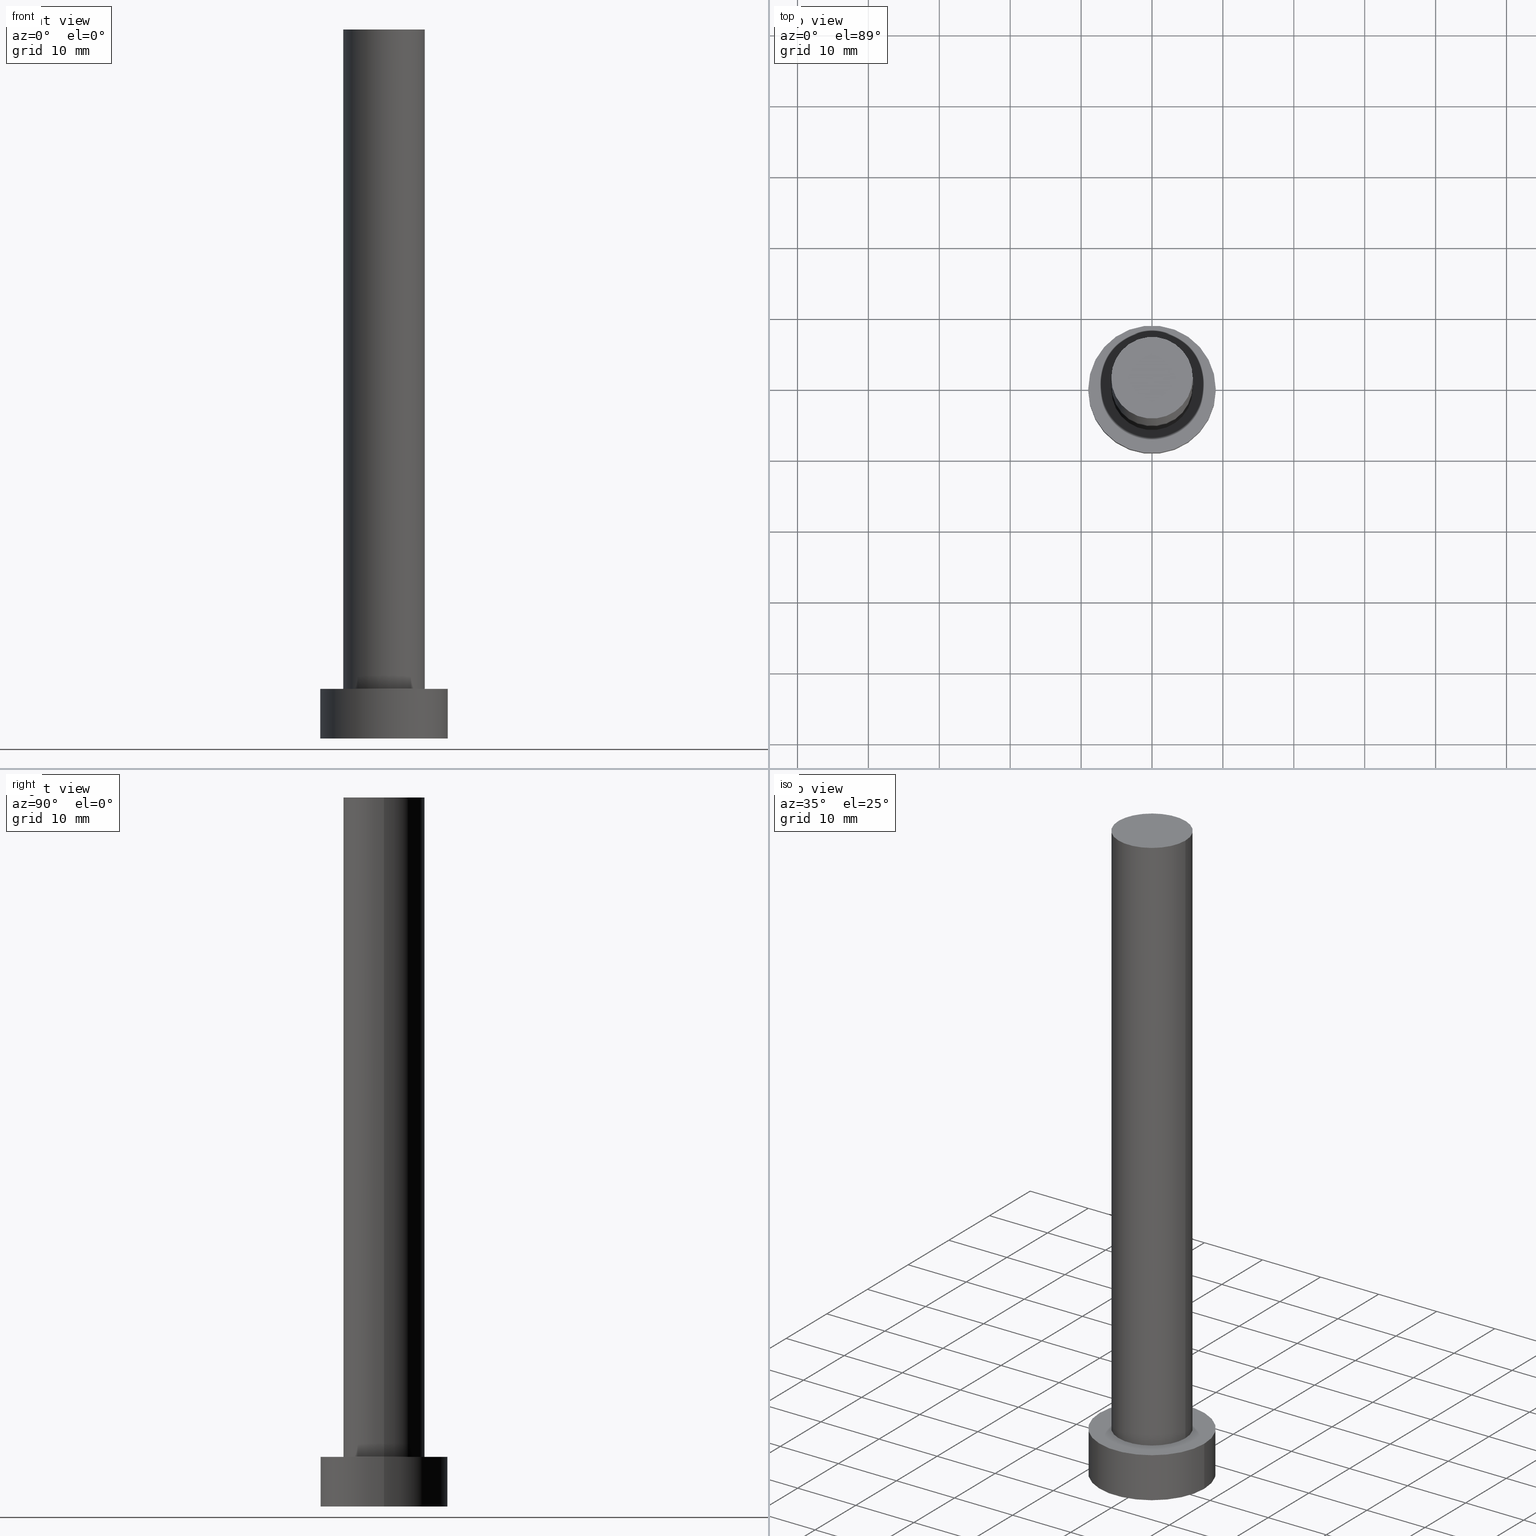
[diagram: canonical four-view strip — front | top / right | iso, engineering-drawing reading convention]
A machine part, canonical four-view strip (front | top / right | iso — engineering-drawing reading convention). The complete STEP part file that produces these views, byte-faithful:
ISO-10303-21;
HEADER;
FILE_DESCRIPTION (( 'STEP AP203' ),
    '1' );
FILE_NAME ('50ae.STEP',
    '2023-02-13T12:28:05',
    ( '' ),
    ( '' ),
    'SwSTEP 2.0',
    'SolidWorks 2019',
    '' );
FILE_SCHEMA (( 'CONFIG_CONTROL_DESIGN' ));
ENDSEC;

DATA;
#1 = PERSON_AND_ORGANIZATION ( #154, #238 ) ;
#2 = ADVANCED_FACE ( 'NONE', ( #80 ), #162, .T. ) ;
#3 = CALENDAR_DATE ( 2023, 13, 2 ) ;
#4 = CC_DESIGN_PERSON_AND_ORGANIZATION_ASSIGNMENT ( #223, #234, ( #130 ) ) ;
#5 = AXIS2_PLACEMENT_3D ( 'NONE', #243, #151, #91 ) ;
#6 = APPROVAL_ROLE ( '' ) ;
#7 = EDGE_LOOP ( 'NONE', ( #217, #252, #173, #56 ) ) ;
#8 = CARTESIAN_POINT ( 'NONE',  ( 9.000000000000000000, 1.102182119232617714E-15, 7.000000000000000000 ) ) ;
#9 = ORIENTED_EDGE ( 'NONE', *, *, #68, .F. ) ;
#10 = CARTESIAN_POINT ( 'NONE',  ( -9.000000000000000000, 0.000000000000000000, 7.000000000000000000 ) ) ;
#11 = DIRECTION ( 'NONE',  ( -0.000000000000000000, -0.000000000000000000, -1.000000000000000000 ) ) ;
#12 = CARTESIAN_POINT ( 'NONE',  ( 0.000000000000000000, 0.000000000000000000, 7.000000000000000000 ) ) ;
#13 = APPROVAL ( #95, 'NEUR�EN�' ) ;
#14 = APPLICATION_CONTEXT ( 'configuration controlled 3d designs of mechanical parts and assemblies' ) ;
#15 = VECTOR ( 'NONE', #225, 1000.000000000000000 ) ;
#16 = DIRECTION ( 'NONE',  ( 1.000000000000000000, 0.000000000000000000, 0.000000000000000000 ) ) ;
#17 = CARTESIAN_POINT ( 'NONE',  ( 0.000000000000000000, 0.000000000000000000, 7.000000000000000000 ) ) ;
#18 = SHAPE_DEFINITION_REPRESENTATION ( #206, #218 ) ;
#19 = MANIFOLD_SOLID_BREP ( 'P�idat vysunut�m3', #101 ) ;
#20 = VECTOR ( 'NONE', #51, 1000.000000000000000 ) ;
#21 = DIRECTION ( 'NONE',  ( 0.000000000000000000, 0.000000000000000000, 1.000000000000000000 ) ) ;
#22 = DIRECTION ( 'NONE',  ( -1.000000000000000000, 0.000000000000000000, 0.000000000000000000 ) ) ;
#23 = EDGE_LOOP ( 'NONE', ( #100, #192 ) ) ;
#24 = UNCERTAINTY_MEASURE_WITH_UNIT (LENGTH_MEASURE( 1.000000000000000082E-05 ), #79, 'distance_accuracy_value', 'NONE');
#25 = CC_DESIGN_SECURITY_CLASSIFICATION ( #155, ( #130 ) ) ;
#26 = LOCAL_TIME ( 13, 28, 5.000000000000000000, #102 ) ;
#27 = EDGE_CURVE ( 'NONE', #112, #81, #103, .T. ) ;
#28 = CARTESIAN_POINT ( 'NONE',  ( 0.000000000000000000, 0.000000000000000000, 7.000000000000000000 ) ) ;
#29 = ORIENTED_EDGE ( 'NONE', *, *, #210, .F. ) ;
#30 = DESIGN_CONTEXT ( 'detailed design', #14, 'design' ) ;
#31 = EDGE_CURVE ( 'NONE', #249, #190, #247, .T. ) ;
#32 = DIRECTION ( 'NONE',  ( 1.000000000000000000, 0.000000000000000000, 0.000000000000000000 ) ) ;
#33 = FACE_BOUND ( 'NONE', #159, .T. ) ;
#34 = DIRECTION ( 'NONE',  ( 0.000000000000000000, 0.000000000000000000, 1.000000000000000000 ) ) ;
#35 = CALENDAR_DATE ( 2023, 13, 2 ) ;
#36 = CARTESIAN_POINT ( 'NONE',  ( -5.750000000000000000, 0.000000000000000000, 7.000000000000000000 ) ) ;
#37 = LINE ( 'NONE', #147, #149 ) ;
#38 = CARTESIAN_POINT ( 'NONE',  ( -5.750000000000000000, 0.000000000000000000, 100.0000000000000000 ) ) ;
#39 = EDGE_CURVE ( 'NONE', #81, #83, #195, .T. ) ;
#40 = ORIENTED_EDGE ( 'NONE', *, *, #178, .F. ) ;
#41 = CALENDAR_DATE ( 2023, 13, 2 ) ;
#42 = CC_DESIGN_PERSON_AND_ORGANIZATION_ASSIGNMENT ( #109, #110, ( #241 ) ) ;
#43 = PERSON_AND_ORGANIZATION_ROLE ( 'creator' ) ;
#44 = AXIS2_PLACEMENT_3D ( 'NONE', #158, #191, #203 ) ;
#45 = AXIS2_PLACEMENT_3D ( 'NONE', #108, #236, #145 ) ;
#46 = CYLINDRICAL_SURFACE ( 'NONE', #71, 9.000000000000000000 ) ;
#47 = CC_DESIGN_PERSON_AND_ORGANIZATION_ASSIGNMENT ( #164, #67, ( #130 ) ) ;
#48 = FACE_OUTER_BOUND ( 'NONE', #23, .T. ) ;
#49 = FACE_OUTER_BOUND ( 'NONE', #85, .T. ) ;
#50 = VECTOR ( 'NONE', #208, 1000.000000000000000 ) ;
#51 = DIRECTION ( 'NONE',  ( -0.000000000000000000, -0.000000000000000000, -1.000000000000000000 ) ) ;
#52 = CARTESIAN_POINT ( 'NONE',  ( 5.750000000000000000, 7.041719095097279894E-16, 7.000000000000000000 ) ) ;
#53 = DIRECTION ( 'NONE',  ( -1.000000000000000000, 0.000000000000000000, 0.000000000000000000 ) ) ;
#54 = CARTESIAN_POINT ( 'NONE',  ( 0.000000000000000000, 0.000000000000000000, 0.000000000000000000 ) ) ;
#55 = LINE ( 'NONE', #150, #15 ) ;
#56 = ORIENTED_EDGE ( 'NONE', *, *, #127, .F. ) ;
#57 = CARTESIAN_POINT ( 'NONE',  ( 0.000000000000000000, 0.000000000000000000, 100.0000000000000000 ) ) ;
#58 = DIRECTION ( 'NONE',  ( 1.000000000000000000, 0.000000000000000000, 0.000000000000000000 ) ) ;
#59 = AXIS2_PLACEMENT_3D ( 'NONE', #156, #93, #16 ) ;
#60 =( NAMED_UNIT ( * ) SI_UNIT ( $, .STERADIAN. ) SOLID_ANGLE_UNIT ( ) );
#61 = ORIENTED_EDGE ( 'NONE', *, *, #84, .F. ) ;
#62 = EDGE_LOOP ( 'NONE', ( #40, #125, #181, #72 ) ) ;
#63 = APPROVAL_PERSON_ORGANIZATION ( #205, #13, #212 ) ;
#64 = PERSON_AND_ORGANIZATION_ROLE ( 'classification_officer' ) ;
#65 = CC_DESIGN_PERSON_AND_ORGANIZATION_ASSIGNMENT ( #86, #43, ( #97 ) ) ;
#66 = CARTESIAN_POINT ( 'NONE',  ( 9.000000000000000000, 1.102182119232617714E-15, 0.000000000000000000 ) ) ;
#67 = PERSON_AND_ORGANIZATION_ROLE ( 'creator' ) ;
#68 = EDGE_CURVE ( 'NONE', #183, #190, #88, .T. ) ;
#69 = LOCAL_TIME ( 13, 28, 5.000000000000000000, #220 ) ;
#70 = FACE_OUTER_BOUND ( 'NONE', #7, .T. ) ;
#71 = AXIS2_PLACEMENT_3D ( 'NONE', #244, #11, #139 ) ;
#72 = ORIENTED_EDGE ( 'NONE', *, *, #120, .T. ) ;
#73 = CARTESIAN_POINT ( 'NONE',  ( 0.000000000000000000, 0.000000000000000000, 100.0000000000000000 ) ) ;
#74 = CARTESIAN_POINT ( 'NONE',  ( 0.000000000000000000, 0.000000000000000000, 7.000000000000000000 ) ) ;
#75 = DIRECTION ( 'NONE',  ( 1.000000000000000000, 0.000000000000000000, 0.000000000000000000 ) ) ;
#76 = APPLICATION_PROTOCOL_DEFINITION ( 'international standard', 'config_control_design', 1994, #104 ) ;
#77 = ORIENTED_EDGE ( 'NONE', *, *, #178, .T. ) ;
#78 = DIRECTION ( 'NONE',  ( 0.000000000000000000, 0.000000000000000000, 1.000000000000000000 ) ) ;
#79 =( LENGTH_UNIT ( ) NAMED_UNIT ( * ) SI_UNIT ( .MILLI., .METRE. ) );
#80 = FACE_OUTER_BOUND ( 'NONE', #94, .T. ) ;
#81 = VERTEX_POINT ( 'NONE', #66 ) ;
#82 = ORIENTED_EDGE ( 'NONE', *, *, #210, .T. ) ;
#83 = VERTEX_POINT ( 'NONE', #228 ) ;
#84 = EDGE_CURVE ( 'NONE', #216, #249, #123, .T. ) ;
#85 = EDGE_LOOP ( 'NONE', ( #29, #222 ) ) ;
#86 = PERSON_AND_ORGANIZATION ( #154, #238 ) ;
#87 = DATE_AND_TIME ( #255, #148 ) ;
#88 = CIRCLE ( 'NONE', #233, 5.750000000000000000 ) ;
#89 = CALENDAR_DATE ( 2023, 13, 2 ) ;
#90 = COORDINATED_UNIVERSAL_TIME_OFFSET ( 1, 0, .AHEAD. ) ;
#91 = DIRECTION ( 'NONE',  ( 1.000000000000000000, 0.000000000000000000, 0.000000000000000000 ) ) ;
#92 = CARTESIAN_POINT ( 'NONE',  ( 0.000000000000000000, 0.000000000000000000, 7.000000000000000000 ) ) ;
#93 = DIRECTION ( 'NONE',  ( 0.000000000000000000, 0.000000000000000000, 1.000000000000000000 ) ) ;
#94 = EDGE_LOOP ( 'NONE', ( #61, #77, #174, #202 ) ) ;
#95 = APPROVAL_STATUS ( 'not_yet_approved' ) ;
#96 = DIRECTION ( 'NONE',  ( -1.000000000000000000, 0.000000000000000000, 0.000000000000000000 ) ) ;
#97 = PRODUCT_DEFINITION ( 'NEZN�M�', '', #130, #30 ) ;
#98 = DATE_AND_TIME ( #35, #26 ) ;
#99 = ORIENTED_EDGE ( 'NONE', *, *, #120, .F. ) ;
#100 = ORIENTED_EDGE ( 'NONE', *, *, #152, .T. ) ;
#101 = CLOSED_SHELL ( 'NONE', ( #2, #133, #161, #188, #186, #219, #242 ) ) ;
#102 = COORDINATED_UNIVERSAL_TIME_OFFSET ( 1, 0, .AHEAD. ) ;
#103 = LINE ( 'NONE', #232, #20 ) ;
#104 = APPLICATION_CONTEXT ( 'configuration controlled 3d designs of mechanical parts and assemblies' ) ;
#105 = ORIENTED_EDGE ( 'NONE', *, *, #117, .T. ) ;
#106 = AXIS2_PLACEMENT_3D ( 'NONE', #207, #119, #214 ) ;
#107 = APPLICATION_PROTOCOL_DEFINITION ( 'international standard', 'config_control_design', 1994, #14 ) ;
#108 = CARTESIAN_POINT ( 'NONE',  ( 0.000000000000000000, 0.000000000000000000, 7.000000000000000000 ) ) ;
#109 = PERSON_AND_ORGANIZATION ( #154, #238 ) ;
#110 = PERSON_AND_ORGANIZATION_ROLE ( 'design_owner' ) ;
#111 = APPROVAL ( #180, 'NEUR�EN�' ) ;
#112 = VERTEX_POINT ( 'NONE', #8 ) ;
#113 = DATE_TIME_ROLE ( 'classification_date' ) ;
#114 = CC_DESIGN_APPROVAL ( #254, ( #130 ) ) ;
#115 = CIRCLE ( 'NONE', #59, 5.750000000000000000 ) ;
#116 = DIRECTION ( 'NONE',  ( 1.000000000000000000, 0.000000000000000000, -0.000000000000000000 ) ) ;
#117 = EDGE_CURVE ( 'NONE', #251, #112, #157, .T. ) ;
#118 = DIRECTION ( 'NONE',  ( 0.000000000000000000, 0.000000000000000000, 1.000000000000000000 ) ) ;
#119 = DIRECTION ( 'NONE',  ( 0.000000000000000000, 0.000000000000000000, 1.000000000000000000 ) ) ;
#120 = EDGE_CURVE ( 'NONE', #190, #183, #189, .T. ) ;
#121 = PLANE ( 'NONE',  #166 ) ;
#122 = DIRECTION ( 'NONE',  ( 1.000000000000000000, 0.000000000000000000, 0.000000000000000000 ) ) ;
#123 = CIRCLE ( 'NONE', #5, 5.750000000000000000 ) ;
#124 = DIRECTION ( 'NONE',  ( -0.000000000000000000, -0.000000000000000000, -1.000000000000000000 ) ) ;
#125 = ORIENTED_EDGE ( 'NONE', *, *, #152, .F. ) ;
#126 = ORIENTED_EDGE ( 'NONE', *, *, #117, .F. ) ;
#127 = EDGE_CURVE ( 'NONE', #251, #83, #37, .T. ) ;
#128 = ORIENTED_EDGE ( 'NONE', *, *, #127, .T. ) ;
#129 = DATE_AND_TIME ( #41, #69 ) ;
#130 = PRODUCT_DEFINITION_FORMATION_WITH_SPECIFIED_SOURCE ( 'LIBOVOLN�', '', #241, .NOT_KNOWN. ) ;
#131 = AXIS2_PLACEMENT_3D ( 'NONE', #92, #168, #96 ) ;
#132 = APPROVAL_STATUS ( 'not_yet_approved' ) ;
#133 = ADVANCED_FACE ( 'NONE', ( #70 ), #46, .T. ) ;
#134 = DIRECTION ( 'NONE',  ( 1.000000000000000000, 0.000000000000000000, -0.000000000000000000 ) ) ;
#135 = DIRECTION ( 'NONE',  ( 0.000000000000000000, 0.000000000000000000, 1.000000000000000000 ) ) ;
#136 = AXIS2_PLACEMENT_3D ( 'NONE', #193, #21, #58 ) ;
#137 = PLANE ( 'NONE',  #106 ) ;
#138 = PLANE ( 'NONE',  #160 ) ;
#139 = DIRECTION ( 'NONE',  ( -1.000000000000000000, 0.000000000000000000, 0.000000000000000000 ) ) ;
#140 = APPROVAL_PERSON_ORGANIZATION ( #144, #254, #176 ) ;
#141 = CC_DESIGN_APPROVAL ( #13, ( #155 ) ) ;
#142 = SECURITY_CLASSIFICATION_LEVEL ( 'unclassified' ) ;
#143 = EDGE_CURVE ( 'NONE', #112, #251, #175, .T. ) ;
#144 = PERSON_AND_ORGANIZATION ( #154, #238 ) ;
#145 = DIRECTION ( 'NONE',  ( 1.000000000000000000, 0.000000000000000000, 0.000000000000000000 ) ) ;
#146 = DATE_TIME_ROLE ( 'creation_date' ) ;
#147 = CARTESIAN_POINT ( 'NONE',  ( -9.000000000000000000, 0.000000000000000000, 7.000000000000000000 ) ) ;
#148 = LOCAL_TIME ( 13, 28, 5.000000000000000000, #90 ) ;
#149 = VECTOR ( 'NONE', #237, 1000.000000000000000 ) ;
#150 = CARTESIAN_POINT ( 'NONE',  ( 5.750000000000000000, 7.041719095097279894E-16, 100.0000000000000000 ) ) ;
#151 = DIRECTION ( 'NONE',  ( 0.000000000000000000, 0.000000000000000000, 1.000000000000000000 ) ) ;
#152 = EDGE_CURVE ( 'NONE', #249, #216, #115, .T. ) ;
#153 = CYLINDRICAL_SURFACE ( 'NONE', #131, 9.000000000000000000 ) ;
#154 = PERSON ( 'NEUR�EN�', 'NEUR�EN�', 'NEUR�EN�', ('NEUR�EN�'), ('NEUR�EN�'), ('NEUR�EN�') ) ;
#155 = SECURITY_CLASSIFICATION ( '', '', #142 ) ;
#156 = CARTESIAN_POINT ( 'NONE',  ( 0.000000000000000000, 0.000000000000000000, 100.0000000000000000 ) ) ;
#157 = CIRCLE ( 'NONE', #45, 9.000000000000000000 ) ;
#158 = CARTESIAN_POINT ( 'NONE',  ( 0.000000000000000000, 0.000000000000000000, 0.000000000000000000 ) ) ;
#159 = EDGE_LOOP ( 'NONE', ( #99, #9 ) ) ;
#160 = AXIS2_PLACEMENT_3D ( 'NONE', #211, #34, #116 ) ;
#161 = ADVANCED_FACE ( 'NONE', ( #171 ), #153, .T. ) ;
#162 = CYLINDRICAL_SURFACE ( 'NONE', #201, 5.750000000000000000 ) ;
#163 = AXIS2_PLACEMENT_3D ( 'NONE', #54, #170, #122 ) ;
#164 = PERSON_AND_ORGANIZATION ( #154, #238 ) ;
#165 = APPROVAL_DATE_TIME ( #87, #254 ) ;
#166 = AXIS2_PLACEMENT_3D ( 'NONE', #12, #118, #134 ) ;
#167 = CYLINDRICAL_SURFACE ( 'NONE', #248, 5.750000000000000000 ) ;
#168 = DIRECTION ( 'NONE',  ( -0.000000000000000000, -0.000000000000000000, -1.000000000000000000 ) ) ;
#169 =( GEOMETRIC_REPRESENTATION_CONTEXT ( 3 ) GLOBAL_UNCERTAINTY_ASSIGNED_CONTEXT ( ( #24 ) ) GLOBAL_UNIT_ASSIGNED_CONTEXT ( ( #79, #230, #60 ) ) REPRESENTATION_CONTEXT ( 'NONE', 'WORKASPACE' ) );
#170 = DIRECTION ( 'NONE',  ( 0.000000000000000000, 0.000000000000000000, 1.000000000000000000 ) ) ;
#171 = FACE_OUTER_BOUND ( 'NONE', #229, .T. ) ;
#172 = CC_DESIGN_APPROVAL ( #111, ( #97 ) ) ;
#173 = ORIENTED_EDGE ( 'NONE', *, *, #39, .T. ) ;
#174 = ORIENTED_EDGE ( 'NONE', *, *, #68, .T. ) ;
#175 = CIRCLE ( 'NONE', #213, 9.000000000000000000 ) ;
#176 = APPROVAL_ROLE ( '' ) ;
#177 = COORDINATED_UNIVERSAL_TIME_OFFSET ( 1, 0, .AHEAD. ) ;
#178 = EDGE_CURVE ( 'NONE', #216, #183, #55, .T. ) ;
#179 = DATE_AND_TIME ( #89, #204 ) ;
#180 = APPROVAL_STATUS ( 'not_yet_approved' ) ;
#181 = ORIENTED_EDGE ( 'NONE', *, *, #31, .T. ) ;
#182 = CC_DESIGN_DATE_AND_TIME_ASSIGNMENT ( #235, #146, ( #97 ) ) ;
#183 = VERTEX_POINT ( 'NONE', #52 ) ;
#184 = CIRCLE ( 'NONE', #44, 9.000000000000000000 ) ;
#185 = CARTESIAN_POINT ( 'NONE',  ( -5.750000000000000000, 0.000000000000000000, 100.0000000000000000 ) ) ;
#186 = ADVANCED_FACE ( 'NONE', ( #49 ), #137, .F. ) ;
#187 = CARTESIAN_POINT ( 'NONE',  ( 5.750000000000000000, 7.041719095097279894E-16, 100.0000000000000000 ) ) ;
#188 = ADVANCED_FACE ( 'NONE', ( #33, #224 ), #121, .T. ) ;
#189 = CIRCLE ( 'NONE', #253, 5.750000000000000000 ) ;
#190 = VERTEX_POINT ( 'NONE', #36 ) ;
#191 = DIRECTION ( 'NONE',  ( 0.000000000000000000, 0.000000000000000000, 1.000000000000000000 ) ) ;
#192 = ORIENTED_EDGE ( 'NONE', *, *, #84, .T. ) ;
#193 = CARTESIAN_POINT ( 'NONE',  ( 0.000000000000000000, 0.000000000000000000, 0.000000000000000000 ) ) ;
#194 = ORIENTED_EDGE ( 'NONE', *, *, #143, .T. ) ;
#195 = CIRCLE ( 'NONE', #163, 9.000000000000000000 ) ;
#196 = EDGE_LOOP ( 'NONE', ( #105, #194 ) ) ;
#197 = APPROVAL_DATE_TIME ( #179, #111 ) ;
#198 = LOCAL_TIME ( 13, 28, 5.000000000000000000, #221 ) ;
#199 = PERSON_AND_ORGANIZATION ( #154, #238 ) ;
#200 = MECHANICAL_CONTEXT ( 'NONE', #104, 'mechanical' ) ;
#201 = AXIS2_PLACEMENT_3D ( 'NONE', #57, #124, #22 ) ;
#202 = ORIENTED_EDGE ( 'NONE', *, *, #31, .F. ) ;
#203 = DIRECTION ( 'NONE',  ( 1.000000000000000000, 0.000000000000000000, 0.000000000000000000 ) ) ;
#204 = LOCAL_TIME ( 13, 28, 5.000000000000000000, #177 ) ;
#205 = PERSON_AND_ORGANIZATION ( #154, #238 ) ;
#206 = PRODUCT_DEFINITION_SHAPE ( 'NONE', 'NONE',  #97 ) ;
#207 = CARTESIAN_POINT ( 'NONE',  ( 0.000000000000000000, 0.000000000000000000, 0.000000000000000000 ) ) ;
#208 = DIRECTION ( 'NONE',  ( -0.000000000000000000, -0.000000000000000000, -1.000000000000000000 ) ) ;
#209 = PRODUCT_RELATED_PRODUCT_CATEGORY ( 'detail', '', ( #241 ) ) ;
#210 = EDGE_CURVE ( 'NONE', #83, #81, #184, .T. ) ;
#211 = CARTESIAN_POINT ( 'NONE',  ( 0.000000000000000000, 0.000000000000000000, 100.0000000000000000 ) ) ;
#212 = APPROVAL_ROLE ( '' ) ;
#213 = AXIS2_PLACEMENT_3D ( 'NONE', #74, #240, #75 ) ;
#214 = DIRECTION ( 'NONE',  ( 1.000000000000000000, 0.000000000000000000, -0.000000000000000000 ) ) ;
#215 = CC_DESIGN_DATE_AND_TIME_ASSIGNMENT ( #129, #113, ( #155 ) ) ;
#216 = VERTEX_POINT ( 'NONE', #187 ) ;
#217 = ORIENTED_EDGE ( 'NONE', *, *, #143, .F. ) ;
#218 = ADVANCED_BREP_SHAPE_REPRESENTATION ( '50ae', ( #19, #136 ), #169 ) ;
#219 = ADVANCED_FACE ( 'NONE', ( #226 ), #167, .T. ) ;
#220 = COORDINATED_UNIVERSAL_TIME_OFFSET ( 1, 0, .AHEAD. ) ;
#221 = COORDINATED_UNIVERSAL_TIME_OFFSET ( 1, 0, .AHEAD. ) ;
#222 = ORIENTED_EDGE ( 'NONE', *, *, #39, .F. ) ;
#223 = PERSON_AND_ORGANIZATION ( #154, #238 ) ;
#224 = FACE_OUTER_BOUND ( 'NONE', #196, .T. ) ;
#225 = DIRECTION ( 'NONE',  ( -0.000000000000000000, -0.000000000000000000, -1.000000000000000000 ) ) ;
#226 = FACE_OUTER_BOUND ( 'NONE', #62, .T. ) ;
#227 = DIRECTION ( 'NONE',  ( 1.000000000000000000, 0.000000000000000000, 0.000000000000000000 ) ) ;
#228 = CARTESIAN_POINT ( 'NONE',  ( -9.000000000000000000, 0.000000000000000000, 0.000000000000000000 ) ) ;
#229 = EDGE_LOOP ( 'NONE', ( #239, #126, #128, #82 ) ) ;
#230 =( NAMED_UNIT ( * ) PLANE_ANGLE_UNIT ( ) SI_UNIT ( $, .RADIAN. ) );
#231 = APPROVAL_PERSON_ORGANIZATION ( #1, #111, #6 ) ;
#232 = CARTESIAN_POINT ( 'NONE',  ( 9.000000000000000000, 1.102182119232617714E-15, 7.000000000000000000 ) ) ;
#233 = AXIS2_PLACEMENT_3D ( 'NONE', #17, #78, #32 ) ;
#234 = PERSON_AND_ORGANIZATION_ROLE ( 'design_supplier' ) ;
#235 = DATE_AND_TIME ( #3, #198 ) ;
#236 = DIRECTION ( 'NONE',  ( 0.000000000000000000, 0.000000000000000000, 1.000000000000000000 ) ) ;
#237 = DIRECTION ( 'NONE',  ( -0.000000000000000000, -0.000000000000000000, -1.000000000000000000 ) ) ;
#238 = ORGANIZATION ( 'NEUR�EN�', 'NEUR�EN�', '' ) ;
#239 = ORIENTED_EDGE ( 'NONE', *, *, #27, .F. ) ;
#240 = DIRECTION ( 'NONE',  ( 0.000000000000000000, 0.000000000000000000, 1.000000000000000000 ) ) ;
#241 = PRODUCT ( '50ae', '50ae', '', ( #200 ) ) ;
#242 = ADVANCED_FACE ( 'NONE', ( #48 ), #138, .T. ) ;
#243 = CARTESIAN_POINT ( 'NONE',  ( 0.000000000000000000, 0.000000000000000000, 100.0000000000000000 ) ) ;
#244 = CARTESIAN_POINT ( 'NONE',  ( 0.000000000000000000, 0.000000000000000000, 7.000000000000000000 ) ) ;
#245 = DIRECTION ( 'NONE',  ( -0.000000000000000000, -0.000000000000000000, -1.000000000000000000 ) ) ;
#246 = APPROVAL_DATE_TIME ( #98, #13 ) ;
#247 = LINE ( 'NONE', #38, #50 ) ;
#248 = AXIS2_PLACEMENT_3D ( 'NONE', #73, #245, #53 ) ;
#249 = VERTEX_POINT ( 'NONE', #185 ) ;
#250 = CC_DESIGN_PERSON_AND_ORGANIZATION_ASSIGNMENT ( #199, #64, ( #155 ) ) ;
#251 = VERTEX_POINT ( 'NONE', #10 ) ;
#252 = ORIENTED_EDGE ( 'NONE', *, *, #27, .T. ) ;
#253 = AXIS2_PLACEMENT_3D ( 'NONE', #28, #135, #227 ) ;
#254 = APPROVAL ( #132, 'NEUR�EN�' ) ;
#255 = CALENDAR_DATE ( 2023, 13, 2 ) ;
ENDSEC;
END-ISO-10303-21;
